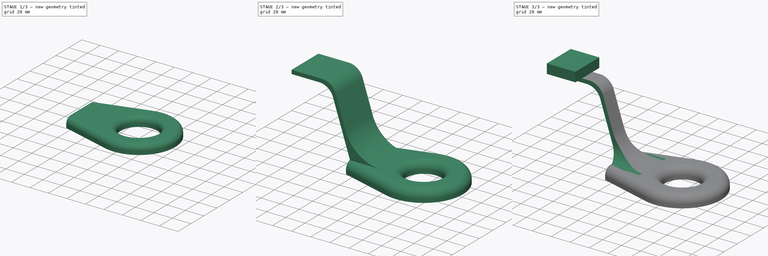
[diagram: build sequence overview — one tinted view per stage of 3, left to right]
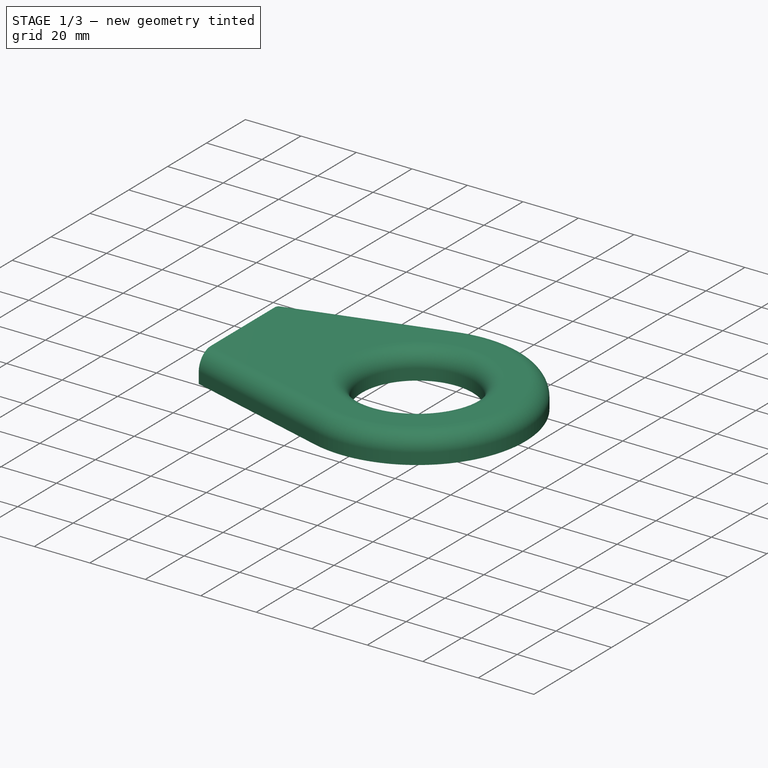
[diagram: stage 1 of 3 — iso view after this stage's code; geometry added in this stage tinted green]
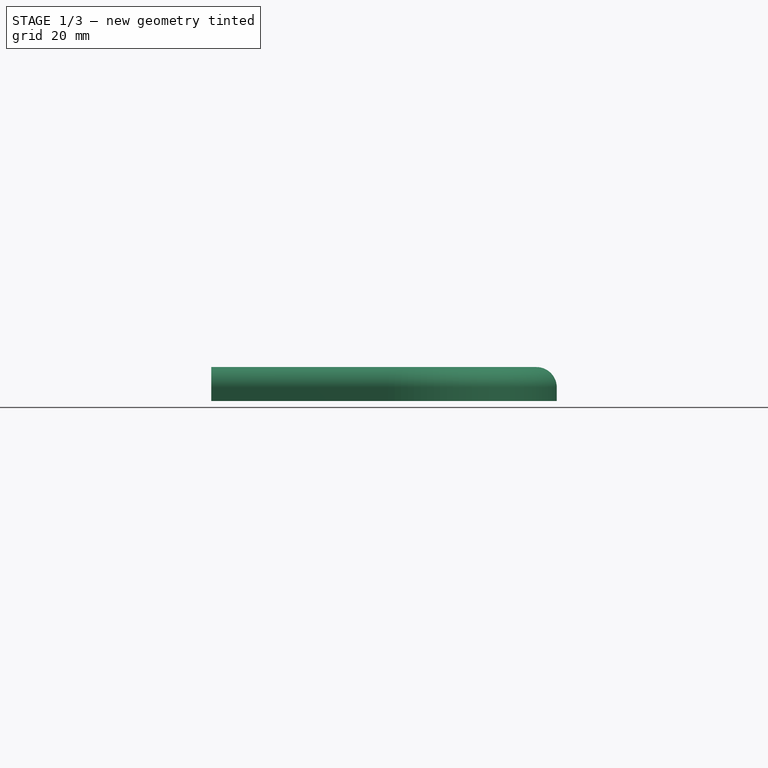
[diagram: stage 1 of 3 — front view after this stage's code; geometry added in this stage tinted green]
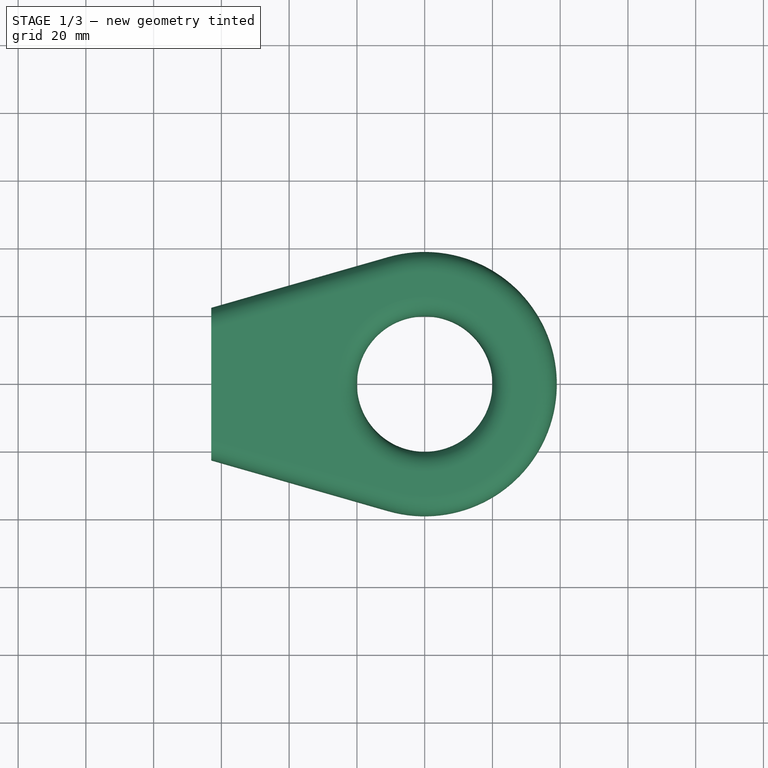
[diagram: stage 1 of 3 — top view after this stage's code; geometry added in this stage tinted green]
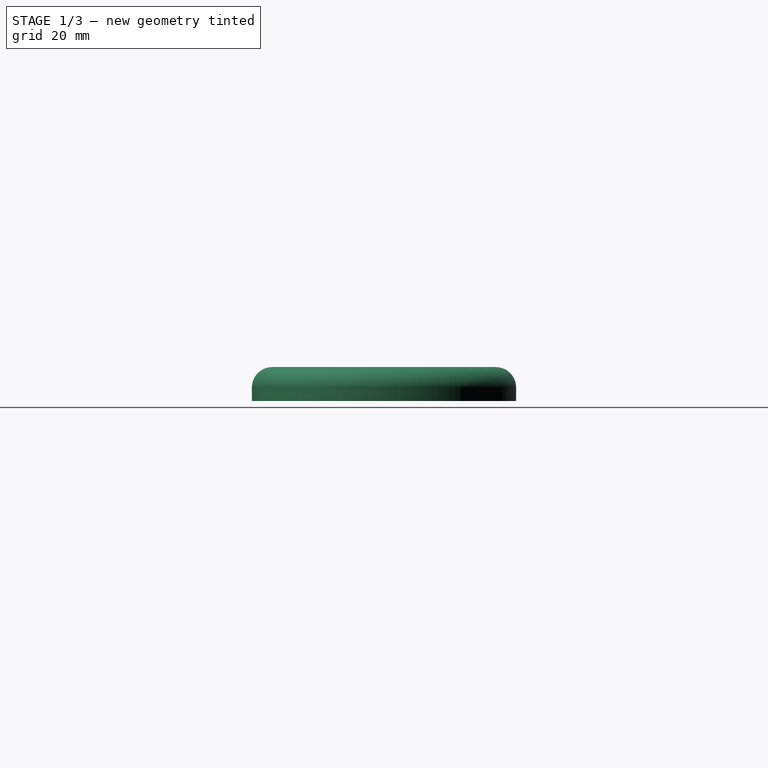
[diagram: stage 1 of 3 — right view after this stage's code; geometry added in this stage tinted green]
FCSTD DOCUMENT  (FreeCAD 0.21R33771 (Git))
Label: ex28
License: All rights reserved
LicenseURL: https://en.wikipedia.org/wiki/All_rights_reserved
objects: Sketcher::SketchObject×4, PartDesign::Pad×3, PartDesign::Fillet×1, PartDesign::Thickness×1, PartDesign::Pocket×1, PartDesign::Body×1
note: 17 computed .brp shape members not serialized (recipe doc carries the construction recipe); baked Part::Feature solids carry a one-line shape summary decoded from their .brp

FEATURE [Sketcher::SketchObject] Sketch
  FullyConstrained = true
  MapMode = 5
  Support = -> [XY_Plane]
  sketch-geometry (6):
    g0: ArcOfCircle CenterX=0 CenterY=0 CenterZ=0 NormalX=0 NormalY=0 NormalZ=1 AngleXU=0 Radius=39 StartAngle=4.43314 EndAngle=8.13323
    g1: LineSegment StartX=-10.7499 StartY=37.4892 StartZ=0 EndX=-63 EndY=22.5067 EndZ=0
    g2: LineSegment StartX=-63 StartY=22.5067 StartZ=0 EndX=-63 EndY=-22.5067 EndZ=0
    g3: LineSegment StartX=-63 StartY=-22.5067 StartZ=0 EndX=-10.7499 EndY=-37.4892 EndZ=0
    g4: Circle CenterX=0 CenterY=0 CenterZ=0 NormalX=0 NormalY=0 NormalZ=1 AngleXU=0 Radius=20
    g5: GeomPoint X=39 Y=0 Z=0
  constraints (15):
    c: Coincident(g0,g-1)
    c: Coincident(g1,g2)
    c: Vertical(g2)
    c: Coincident(g2,g3)
    c: Vertical(g1,g3)
    c: Equal(g1,g3)
    c: Angle(g-1,g1) = 0.279253
    c: Coincident(g0,g3)
    c: Tangent(g0,g1) = -1.5708
    c: Radius(g0) = 39
    c: Coincident(g4,g0)
    c: Radius(g4) = 20
    c: PointOnObject(g5,g0)
    c: PointOnObject(g5,g-1)
    c: DistanceX(g1,g5) = 102
FEATURE [PartDesign::Pad] Pad
  Direction = (0,0,1)
  Length = 10
  Length2 = 10
  Profile = -> Sketch
  ReferenceAxis = -> Sketch [N_Axis]
  Type = 0
FEATURE [PartDesign::Fillet] Fillet
  Base = -> Pad [Edge12,Edge4,Edge7,Edge15]
  BaseFeature = -> Pad
  Radius = 6
  SupportTransform = false
  UseAllEdges = false
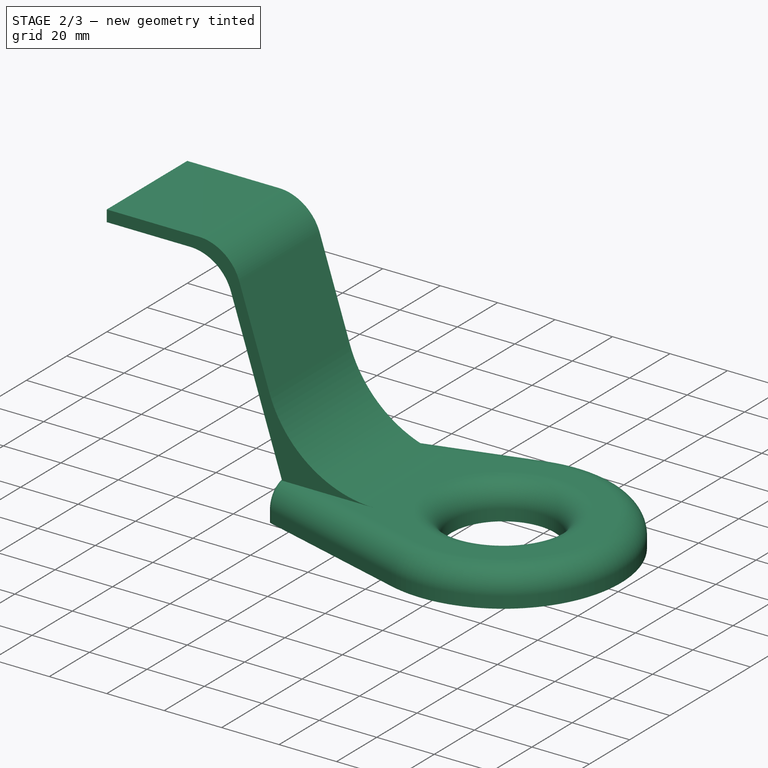
[diagram: stage 2 of 3 — iso view after this stage's code; geometry added in this stage tinted green]
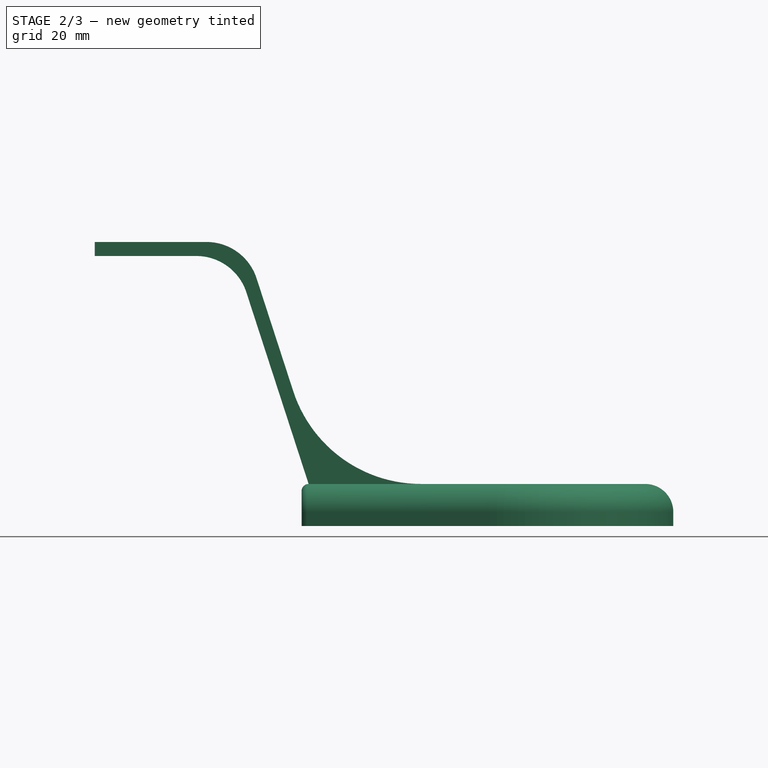
[diagram: stage 2 of 3 — front view after this stage's code; geometry added in this stage tinted green]
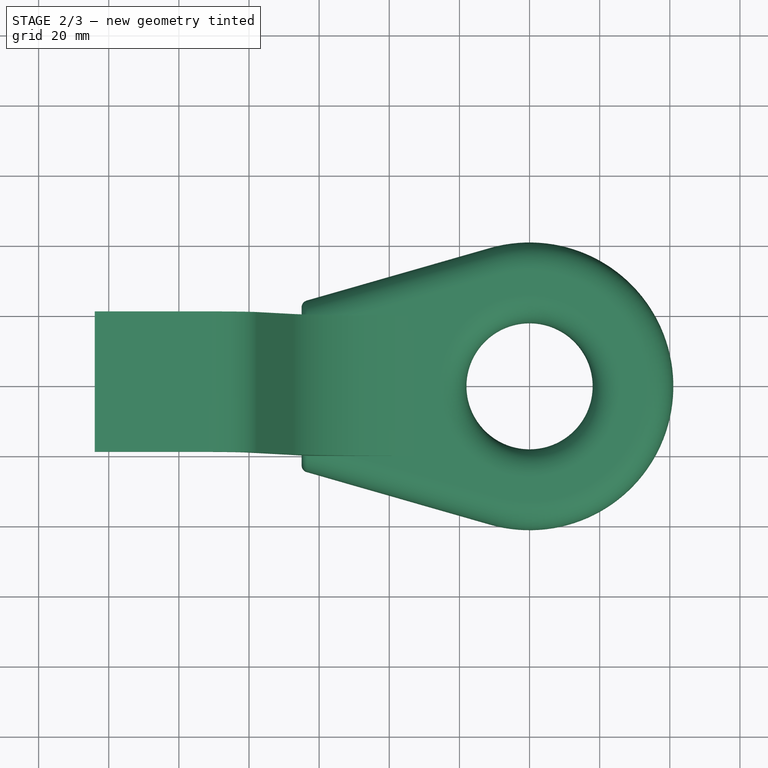
[diagram: stage 2 of 3 — top view after this stage's code; geometry added in this stage tinted green]
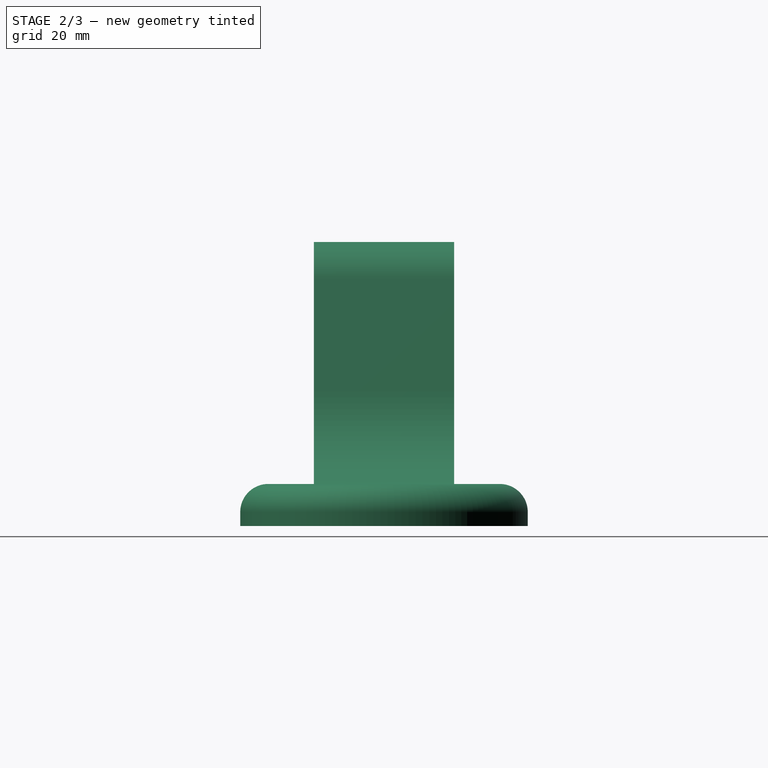
[diagram: stage 2 of 3 — right view after this stage's code; geometry added in this stage tinted green]
FEATURE [PartDesign::Thickness] Thickness
  Base = -> Fillet [Face4]
  BaseFeature = -> Fillet
  Intersection = false
  Join = 0
  Mode = 0
  SupportTransform = false
  Value = 2
FEATURE [Sketcher::SketchObject] Sketch001
  ExternalGeometry = -> [Thickness]
  FullyConstrained = true
  MapMode = 5
  Placement = pos=(0,0,0) rot=(1,0,0;1.5708rad)
  Support = -> [XZ_Plane]
  sketch-geometry (9):
    g0: LineSegment StartX=-63 StartY=12 StartZ=0 EndX=-80.7521 EndY=66.6353 EndZ=0
    g1: LineSegment StartX=-95.0179 StartY=77 StartZ=0 EndX=-124 EndY=77 EndZ=0
    g2: LineSegment StartX=-124 StartY=77 StartZ=0 EndX=-124 EndY=81 EndZ=0
    g3: LineSegment StartX=-124 StartY=81 StartZ=0 EndX=-92.1117 EndY=81 EndZ=0
    g4: LineSegment StartX=-77.8459 StartY=70.6353 StartZ=0 EndX=-67.383 EndY=38.4338 EndZ=0
    g5: ArcOfCircle CenterX=-31 CenterY=50.2554 CenterZ=0 NormalX=0 NormalY=0 NormalZ=1 AngleXU=0 Radius=38.2554 StartAngle=3.45575 EndAngle=4.71239
    g6: ArcOfCircle CenterX=-95.0179 CenterY=62 CenterZ=0 NormalX=0 NormalY=0 NormalZ=1 AngleXU=0 Radius=15 StartAngle=0.314159 EndAngle=1.5708
    g7: ArcOfCircle CenterX=-92.1117 CenterY=66 CenterZ=0 NormalX=0 NormalY=0 NormalZ=1 AngleXU=0 Radius=15 StartAngle=0.314159 EndAngle=1.5708
    g8: LineSegment StartX=-63 StartY=12 StartZ=0 EndX=-31 EndY=12 EndZ=0
  constraints (25):
    c: Coincident(g-3,g0)
    c: Horizontal(g1)
    c: Coincident(g1,g2)
    c: Coincident(g2,g3)
    c: Horizontal(g3)
    c: Tangent(g5,g-3) = -1.5708
    c: Tangent(g5,g4) = -1.5708
    c: Vertical(g2)
    c: DistanceY(g2,g2) = 4
    c: DistanceY(g0,g1) = 65
    c: Tangent(g1,g6) = -1.5708
    c: Tangent(g0,g6) = -1.5708
    c: Radius(g6) = 15
    c: Angle(g-1,g0) = 1.88496
    c: Distance(g0,g4) = 4
    c: DistanceX(g1,g-4) = 165
    c: DistanceX(g0,g5) = 32
    c: Tangent(g3,g7) = 1.5708
    c: Tangent(g4,g7) = 1.5708
    c: Equal(g7,g6)
    c: Distance(g4,g0) = 4
    c: Coincident(g8,g0)
    c: Coincident(g8,g5)
    c: Horizontal(g8)
    c: Tangent(g8,g5)
FEATURE [PartDesign::Pad] Pad001
  BaseFeature = -> Thickness
  Direction = (0,-1,2e-16)
  Length = 40
  Length2 = 10
  Midplane = true
  Profile = -> Sketch001
  ReferenceAxis = -> Sketch001 [N_Axis]
  Type = 0
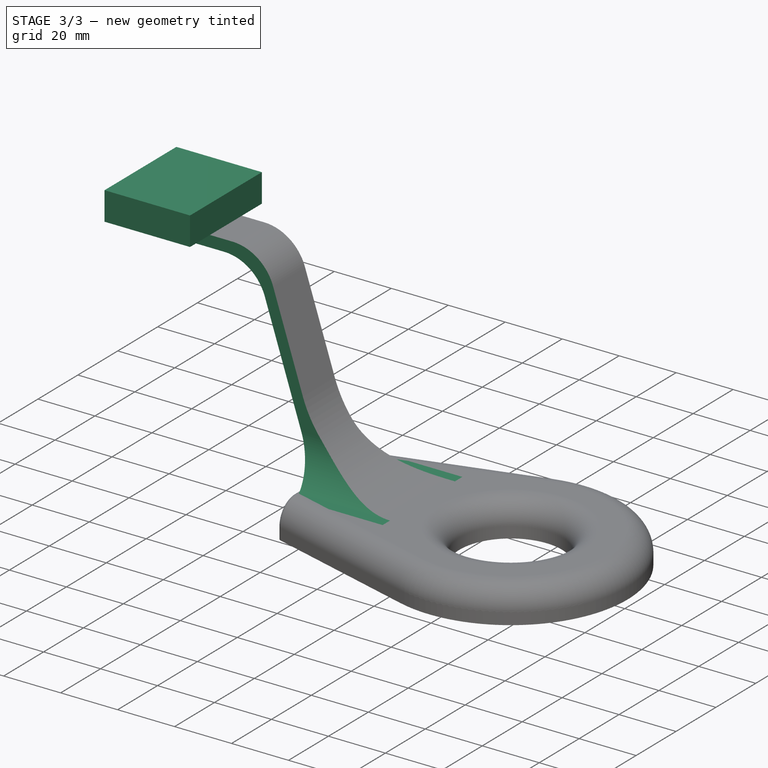
[diagram: stage 3 of 3 — iso view after this stage's code; geometry added in this stage tinted green]
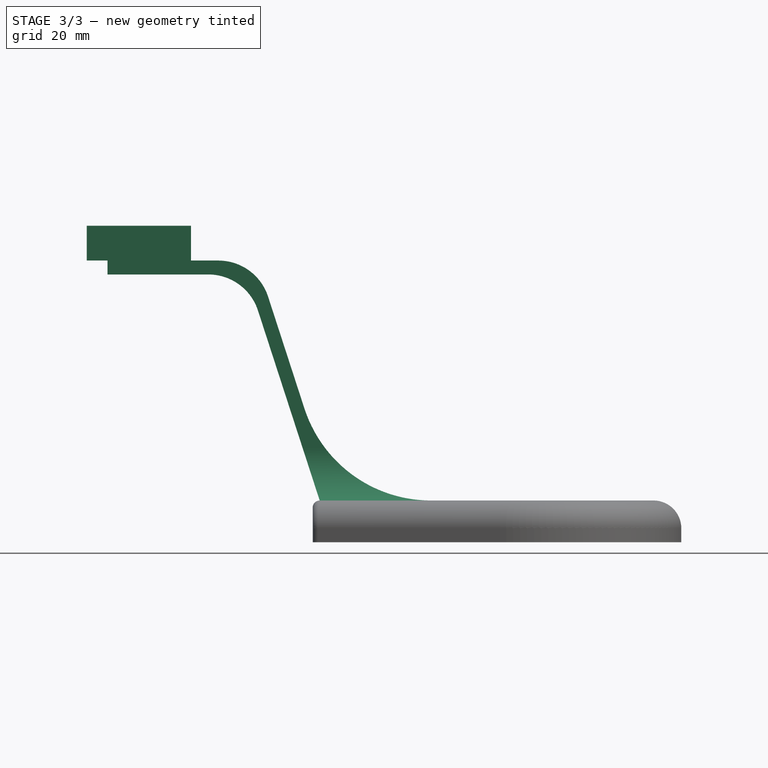
[diagram: stage 3 of 3 — front view after this stage's code; geometry added in this stage tinted green]
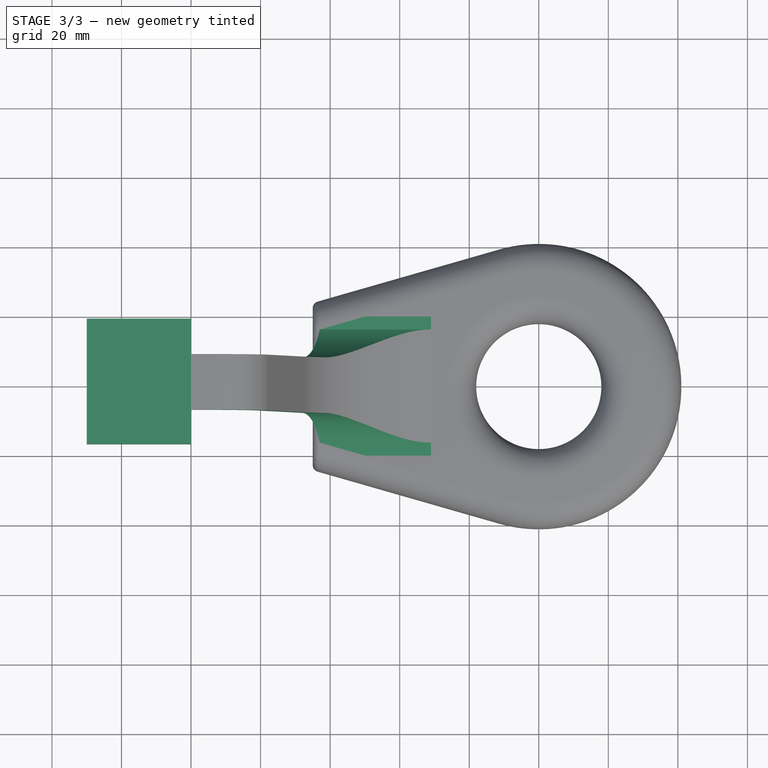
[diagram: stage 3 of 3 — top view after this stage's code; geometry added in this stage tinted green]
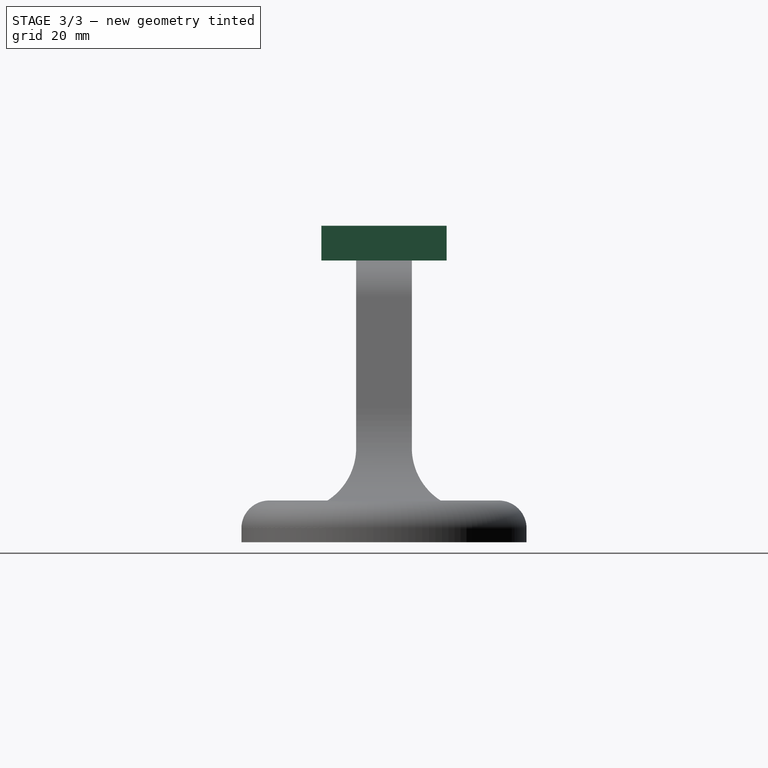
[diagram: stage 3 of 3 — right view after this stage's code; geometry added in this stage tinted green]
FEATURE [Sketcher::SketchObject] Sketch002
  ExternalGeometry = -> [Pad001]
  FullyConstrained = false
  MapMode = 5
  Placement = pos=(0,0,0) rot=(0.57735,0.57735,0.57735;2.0944rad)
  Support = -> [YZ_Plane]
  sketch-geometry (11):
    g0: LineSegment StartX=8 StartY=94.2657 StartZ=0 EndX=8 EndY=27.1403 EndZ=0
    g1: LineSegment StartX=-8 StartY=27.1403 StartZ=0 EndX=-8 EndY=94.2657 EndZ=0
    g2: LineSegment StartX=-8 StartY=94.2657 StartZ=0 EndX=8 EndY=94.2657 EndZ=0
    g3: GeomPoint X=0 Y=60.703 Z=0
    g4: ArcOfCircle CenterX=26 CenterY=27.1403 CenterZ=0 NormalX=0 NormalY=0 NormalZ=1 AngleXU=0 Radius=18 StartAngle=3.14159 EndAngle=4.14096
    g5: ArcOfCircle CenterX=-26 CenterY=27.1403 CenterZ=0 NormalX=0 NormalY=0 NormalZ=1 AngleXU=0 Radius=18 StartAngle=5.28382 EndAngle=6.28319
    g6: LineSegment StartX=16.2649 StartY=12 StartZ=0 EndX=86.3078 EndY=12 EndZ=0
    g7: LineSegment StartX=-16.2649 StartY=12 StartZ=0 EndX=-95.7912 EndY=12 EndZ=0
    g8: LineSegment StartX=-95.7912 StartY=12 StartZ=0 EndX=-95.7912 EndY=124.282 EndZ=0
    g9: LineSegment StartX=-95.7912 StartY=124.282 StartZ=0 EndX=86.3078 EndY=124.282 EndZ=0
    g10: LineSegment StartX=86.3078 StartY=124.282 StartZ=0 EndX=86.3078 EndY=12 EndZ=0
  constraints (26):
    c: Coincident(g1,g2)
    c: Coincident(g2,g0)
    c: Horizontal(g2)
    c: Vertical(g0)
    c: Vertical(g1)
    c: Symmetric(g1,g0,g3)
    c: PointOnObject(g3,g-2)
    c: DistanceX(g2,g2) = 16
    c: Horizontal(g5,g4)
    c: Coincident(g5,g1)
    c: Coincident(g5,g-6)
    c: Tangent(g1,g5) = -1.5708
    c: Tangent(g4,g0) = -1.5708
    c: Radius(g4) = 18
    c: Radius(g5) = 18
    c: Coincident(g6,g4)
    c: Horizontal(g6)
    c: Coincident(g7,g5)
    c: Horizontal(g7)
    c: Coincident(g7,g8)
    c: Vertical(g8)
    c: Coincident(g8,g9)
    c: Horizontal(g9)
    c: Coincident(g9,g10)
    c: Coincident(g10,g6)
    c: Vertical(g10)
FEATURE [PartDesign::Pocket] Pocket
  BaseFeature = -> Pad001
  Direction = (-1,2e-16,-3e-16)
  Length = 5
  Length2 = 5
  Profile = -> Sketch002
  ReferenceAxis = -> Sketch002 [N_Axis]
  Type = 1
FEATURE [Sketcher::SketchObject] Sketch003
  FullyConstrained = true
  MapMode = 5
  Placement = pos=(0,1.8e-14,81) rot=(0,0,1;0rad)
  Support = -> [Pocket]
  sketch-geometry (5):
    g0: LineSegment StartX=-100 StartY=-18 StartZ=0 EndX=-100 EndY=18 EndZ=0
    g1: LineSegment StartX=-100 StartY=18 StartZ=0 EndX=-130 EndY=18 EndZ=0
    g2: LineSegment StartX=-130 StartY=18 StartZ=0 EndX=-130 EndY=-18 EndZ=0
    g3: LineSegment StartX=-130 StartY=-18 StartZ=0 EndX=-100 EndY=-18 EndZ=0
    g4: GeomPoint X=-115 Y=0 Z=0
  constraints (13):
    c: Coincident(g0,g1)
    c: Coincident(g1,g2)
    c: Coincident(g2,g3)
    c: Coincident(g3,g0)
    c: Horizontal(g1)
    c: Horizontal(g3)
    c: Vertical(g0)
    c: Vertical(g2)
    c: Symmetric(g1,g0,g4)
    c: PointOnObject(g4,g-1)
    c: DistanceY(g2,g2) = 36
    c: DistanceX(g1,g1) = 30
    c: DistanceX(g0,g-1) = 100
FEATURE [PartDesign::Pad] Pad002
  BaseFeature = -> Pocket
  Direction = (0,2e-16,1)
  Length = 10
  Length2 = 10
  Profile = -> Sketch003
  ReferenceAxis = -> Sketch003 [N_Axis]
  Type = 0
FEATURE [PartDesign::Body] Body
  Group = -> [Sketch,Pad,Fillet,Thickness,Sketch001,Pad001,Sketch002,Pocket,Sketch003,Pad002]
  Origin = -> Origin
  Tip = -> Pad002
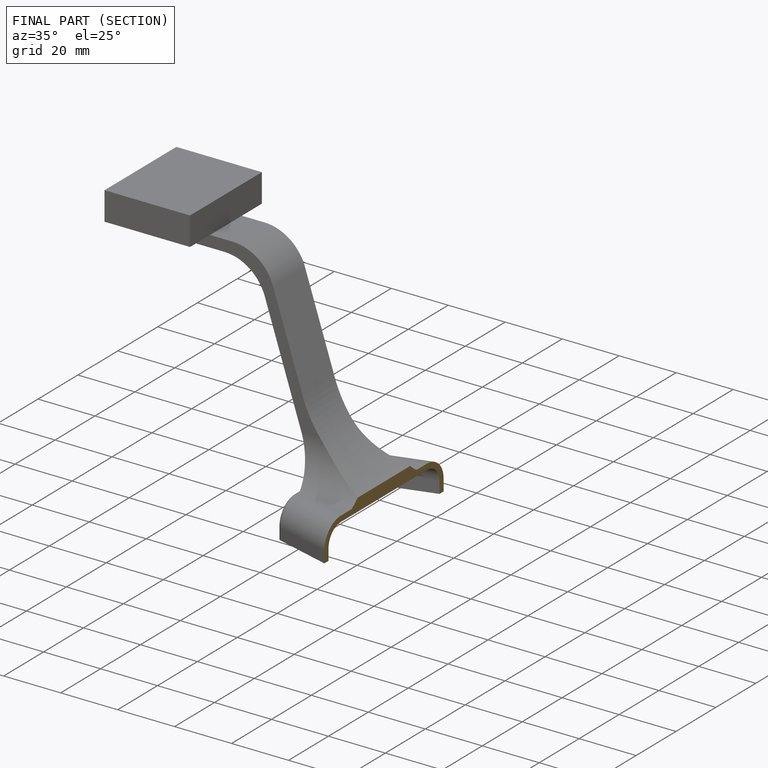
[diagram: finished part — half-section view (interior)]
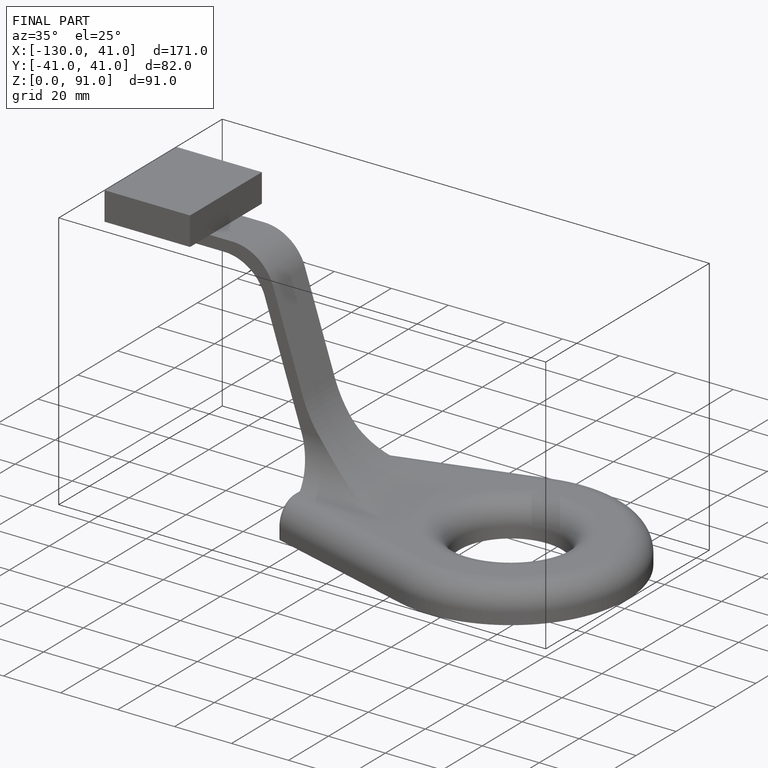
[diagram: finished part — iso view with bounding-box wireframe]
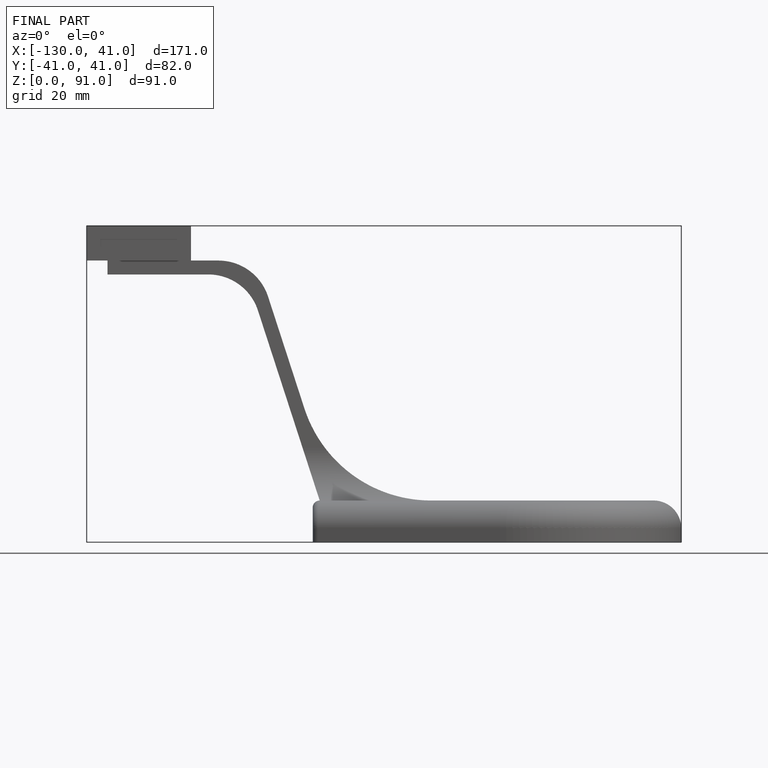
[diagram: finished part — front view with bounding-box wireframe]
